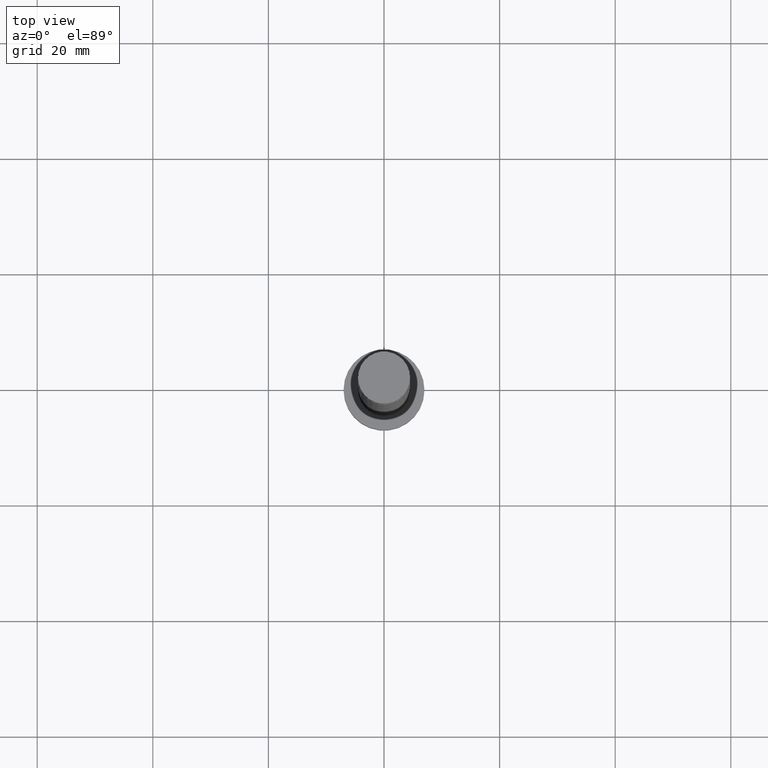
[diagram: clean part render]
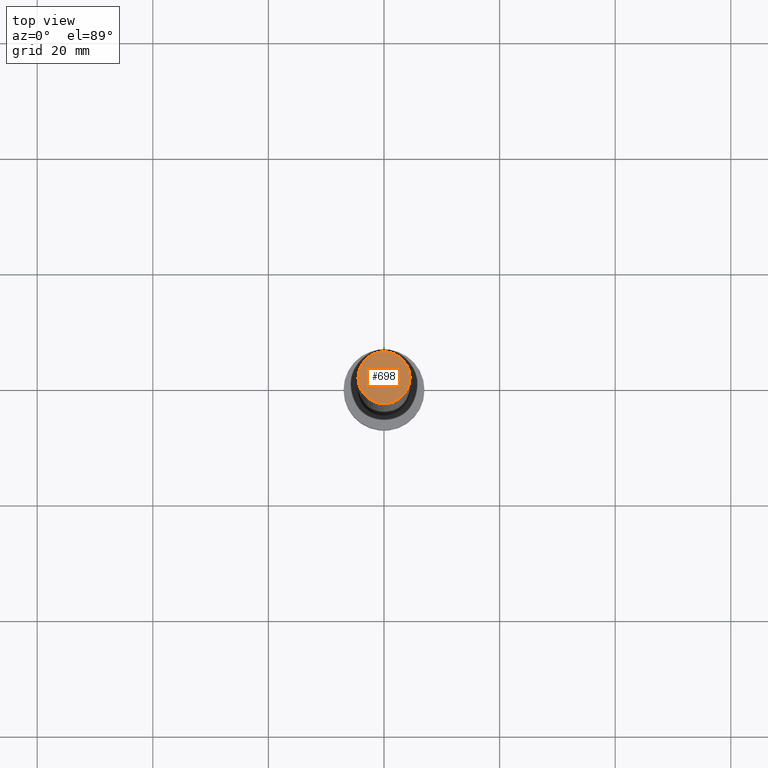
[diagram: same view with one face highlighted and labeled with its STEP entity id]
A machine part, top view. The second image highlights one B-rep face of the part: STEP entity #698.
In plain terms, the highlighted planar face has unit normal (0, 0, 1).
Its self-contained STEP definition (entity closure, byte-faithful):
#2 = EDGE_CURVE ( 'NONE', #1150, #1534, #122, .T. ) ;
#49 = AXIS2_PLACEMENT_3D ( 'NONE', #372, #119, #860 ) ;
#119 = DIRECTION ( 'NONE',  ( 0.000000000000000000, 0.000000000000000000, 1.000000000000000000 ) ) ;
#122 = CIRCLE ( 'NONE', #1270, 4.500000000000000000 ) ;
#185 = DIRECTION ( 'NONE',  ( 0.000000000000000000, 0.000000000000000000, 1.000000000000000000 ) ) ;
#201 = CARTESIAN_POINT ( 'NONE',  ( -4.500000000000000000, 0.000000000000000000, 125.0000000000000000 ) ) ;
#261 = PLANE ( 'NONE',  #920 ) ;
#372 = CARTESIAN_POINT ( 'NONE',  ( 0.000000000000000000, 0.000000000000000000, 125.0000000000000000 ) ) ;
#484 = CARTESIAN_POINT ( 'NONE',  ( 4.500000000000000000, 5.510910596163088569E-16, 125.0000000000000000 ) ) ;
#511 = DIRECTION ( 'NONE',  ( 1.000000000000000000, 0.000000000000000000, -0.000000000000000000 ) ) ;
#540 = CIRCLE ( 'NONE', #49, 4.500000000000000000 ) ;
#633 = CARTESIAN_POINT ( 'NONE',  ( 0.000000000000000000, 0.000000000000000000, 125.0000000000000000 ) ) ;
#698 = ADVANCED_FACE ( 'NONE', ( #1345 ), #261, .T. ) ;
#805 = ORIENTED_EDGE ( 'NONE', *, *, #1568, .T. ) ;
#860 = DIRECTION ( 'NONE',  ( 1.000000000000000000, 0.000000000000000000, 0.000000000000000000 ) ) ;
#895 = EDGE_LOOP ( 'NONE', ( #1535, #805 ) ) ;
#902 = CARTESIAN_POINT ( 'NONE',  ( 0.000000000000000000, 0.000000000000000000, 125.0000000000000000 ) ) ;
#920 = AXIS2_PLACEMENT_3D ( 'NONE', #633, #1109, #511 ) ;
#1109 = DIRECTION ( 'NONE',  ( 0.000000000000000000, 0.000000000000000000, 1.000000000000000000 ) ) ;
#1150 = VERTEX_POINT ( 'NONE', #201 ) ;
#1270 = AXIS2_PLACEMENT_3D ( 'NONE', #902, #185, #1514 ) ;
#1345 = FACE_OUTER_BOUND ( 'NONE', #895, .T. ) ;
#1514 = DIRECTION ( 'NONE',  ( 1.000000000000000000, 0.000000000000000000, 0.000000000000000000 ) ) ;
#1534 = VERTEX_POINT ( 'NONE', #484 ) ;
#1535 = ORIENTED_EDGE ( 'NONE', *, *, #2, .T. ) ;
#1568 = EDGE_CURVE ( 'NONE', #1534, #1150, #540, .T. ) ;